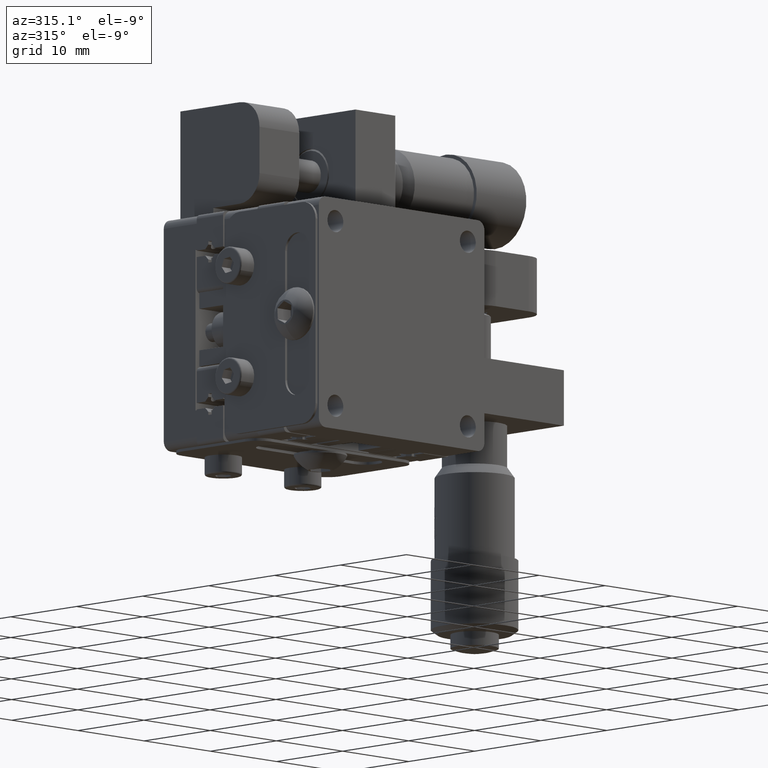
[diagram: clean part render]
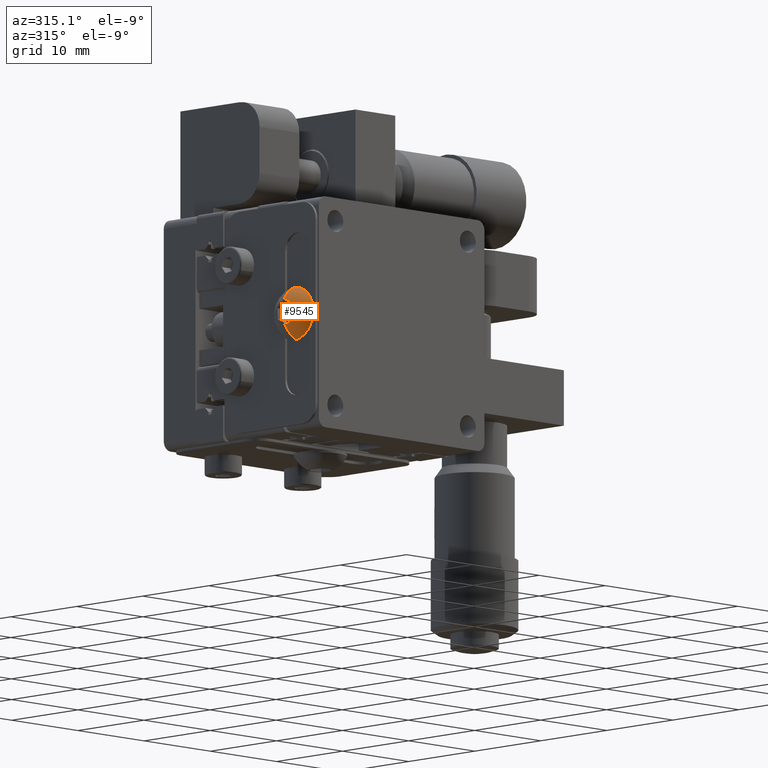
[diagram: same view with one face highlighted and labeled with its STEP entity id]
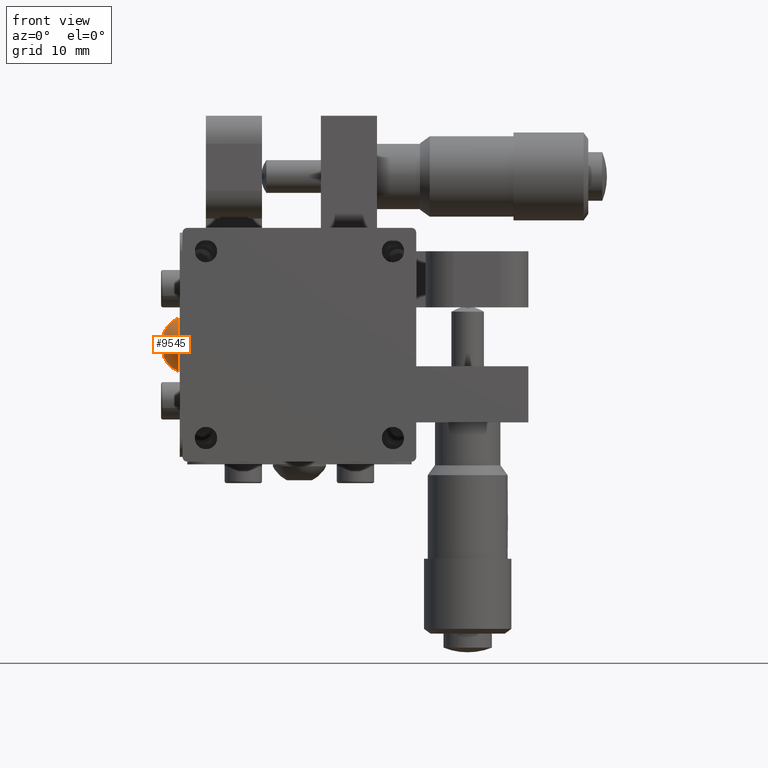
[diagram: same view with one face highlighted and labeled with its STEP entity id]
A machine part, auxiliary view. The second image highlights one B-rep face of the part: STEP entity #9545.
A second angle (front view) of the same face is appended — the face is thin or edge-on in the first view.
In plain terms, the highlighted spherical surface has radius 3.1562 mm.
Its self-contained STEP definition (entity closure, byte-faithful):
#2882 = CARTESIAN_POINT ( 'NONE',  ( -11.64374999999992400, -5.899999999999998600, 7.938829300395623200E-016 ) ) ;
#5517 = ORIENTED_EDGE ( 'NONE', *, *, #70034, .F. ) ;
#9545 = ADVANCED_FACE ( 'NONE', ( #12558 ), #79906, .T. ) ;
#10367 = DIRECTION ( 'NONE',  ( 0.0000000000000000000, 0.9983860575304620600, -0.05679154980083544300 ) ) ;
#11969 = VERTEX_POINT ( 'NONE', #46858 ) ;
#12384 = ORIENTED_EDGE ( 'NONE', *, *, #44919, .F. ) ;
#12558 = FACE_OUTER_BOUND ( 'NONE', #52020, .T. ) ;
#16556 = CARTESIAN_POINT ( 'NONE',  ( -11.64374999999992400, -5.899999999999998600, 7.938829300395623200E-016 ) ) ;
#17639 = CARTESIAN_POINT ( 'NONE',  ( -12.99999999999994300, -5.899999999999998600, 7.938829300395623200E-016 ) ) ;
#21804 = AXIS2_PLACEMENT_3D ( 'NONE', #43705, #81314, #29136 ) ;
#23554 = DIRECTION ( 'NONE',  ( 1.000000000000000000, 0.0000000000000000000, 0.0000000000000000000 ) ) ;
#29136 = DIRECTION ( 'NONE',  ( 0.0000000000000000000, -0.05679154980083542900, -0.9983860575304621700 ) ) ;
#31258 = DIRECTION ( 'NONE',  ( 0.0000000000000000000, 0.9983860575304620600, -0.05679154980083551300 ) ) ;
#34475 = DIRECTION ( 'NONE',  ( -1.000000000000000000, -0.0000000000000000000, -0.0000000000000000000 ) ) ;
#36881 = VERTEX_POINT ( 'NONE', #54486 ) ;
#37244 = AXIS2_PLACEMENT_3D ( 'NONE', #2882, #10367, #69721 ) ;
#39838 = ORIENTED_EDGE ( 'NONE', *, *, #83385, .T. ) ;
#43705 = CARTESIAN_POINT ( 'NONE',  ( -11.64374999999992400, -5.899999999999998600, 7.938829300395623200E-016 ) ) ;
#44919 = EDGE_CURVE ( 'NONE', #82097, #36881, #85098, .T. ) ;
#46858 = CARTESIAN_POINT ( 'NONE',  ( -14.49999999999994300, -5.823726813149781000, 1.340870016432501100 ) ) ;
#47217 = CARTESIAN_POINT ( 'NONE',  ( -14.49999999999994300, -5.976273186850216100, -1.340870016432498900 ) ) ;
#47559 = DIRECTION ( 'NONE',  ( 0.0000000000000000000, -0.05679154980083527700, -0.9983860575304620600 ) ) ;
#52020 = EDGE_LOOP ( 'NONE', ( #95363, #5517, #39838, #12384 ) ) ;
#52553 = CIRCLE ( 'NONE', #60648, 3.156250000000000000 ) ;
#54486 = CARTESIAN_POINT ( 'NONE',  ( -12.99999999999994300, -6.061855916932379400, -2.845400263961813000 ) ) ;
#56521 = CARTESIAN_POINT ( 'NONE',  ( -14.49999999999994300, -5.899999999999998600, 7.938829300395623200E-016 ) ) ;
#57477 = DIRECTION ( 'NONE',  ( 0.0000000000000000000, -0.05679154980083552700, -0.9983860575304620600 ) ) ;
#60648 = AXIS2_PLACEMENT_3D ( 'NONE', #16556, #31258, #68451 ) ;
#64122 = EDGE_CURVE ( 'NONE', #11969, #82097, #52553, .T. ) ;
#64760 = CARTESIAN_POINT ( 'NONE',  ( -12.99999999999994100, -5.738144083067618700, 2.845400263961814800 ) ) ;
#66414 = CIRCLE ( 'NONE', #82081, 1.343037601856328800 ) ;
#68451 = DIRECTION ( 'NONE',  ( 0.0000000000000000000, 0.05679154980083542900, 0.9983860575304621700 ) ) ;
#69721 = DIRECTION ( 'NONE',  ( 0.0000000000000000000, -0.05679154980083543600, -0.9983860575304620600 ) ) ;
#70034 = EDGE_CURVE ( 'NONE', #84908, #11969, #66414, .T. ) ;
#79906 = SPHERICAL_SURFACE ( 'NONE', #37244, 3.156250000000000000 ) ;
#81314 = DIRECTION ( 'NONE',  ( 0.0000000000000000000, -0.9983860575304620600, 0.05679154980083538800 ) ) ;
#82081 = AXIS2_PLACEMENT_3D ( 'NONE', #56521, #34475, #57477 ) ;
#82097 = VERTEX_POINT ( 'NONE', #64760 ) ;
#82189 = AXIS2_PLACEMENT_3D ( 'NONE', #17639, #23554, #47559 ) ;
#83385 = EDGE_CURVE ( 'NONE', #84908, #36881, #93395, .T. ) ;
#84908 = VERTEX_POINT ( 'NONE', #47217 ) ;
#85098 = CIRCLE ( 'NONE', #82189, 2.849999999999999600 ) ;
#93395 = CIRCLE ( 'NONE', #21804, 3.156250000000000000 ) ;
#95363 = ORIENTED_EDGE ( 'NONE', *, *, #64122, .F. ) ;